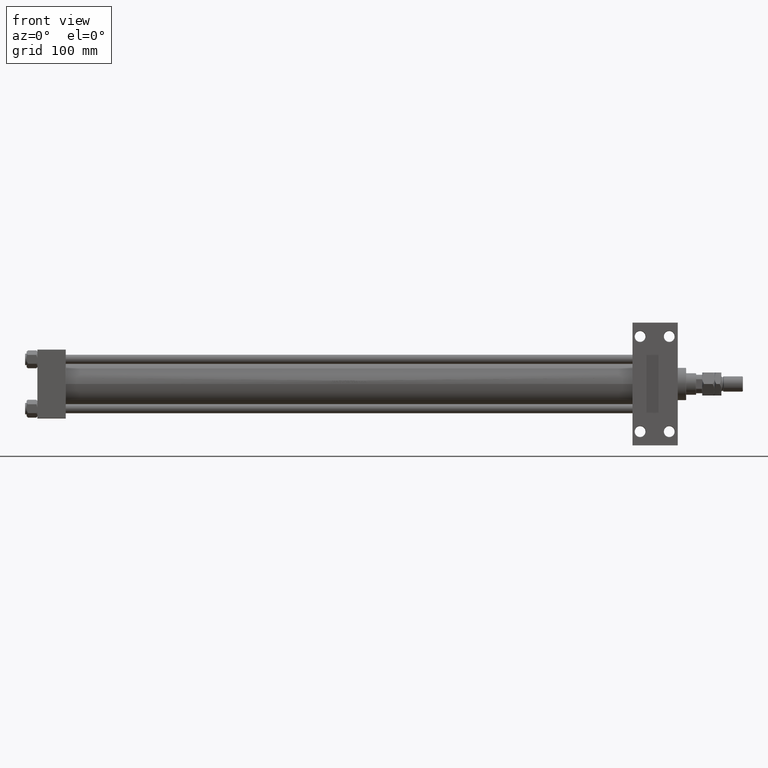
[diagram: clean part render]
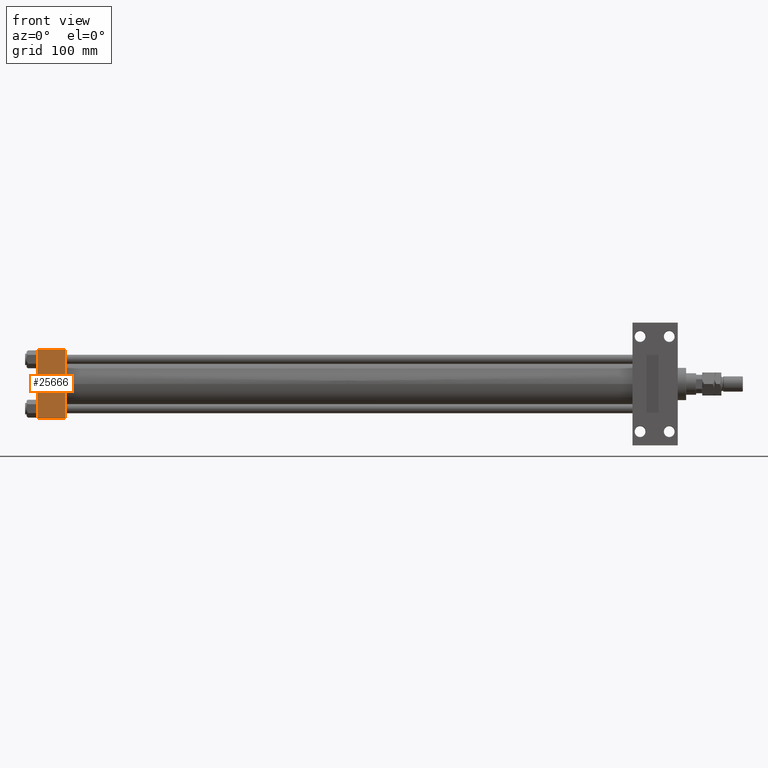
[diagram: same view with one face highlighted and labeled with its STEP entity id]
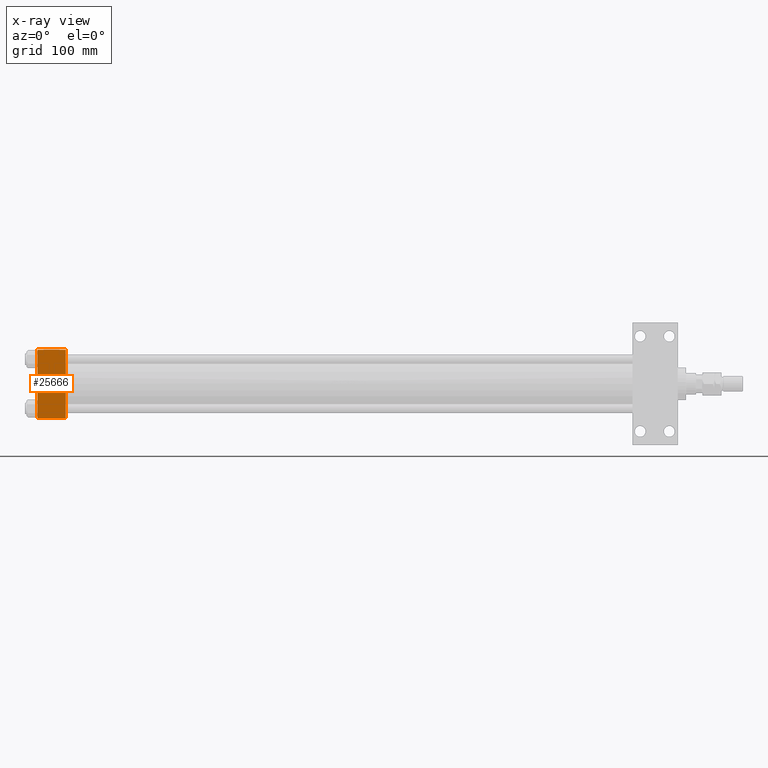
[diagram: x-ray of the same camera — body ghosted, the highlighted face saturated]
A machine part, front view. The second image highlights one B-rep face of the part: STEP entity #25666.
The next image is the same camera in x-ray: the body ghosted, the highlighted face saturated — about 0% of this face is hidden behind the body in this view.
In plain terms, the highlighted planar face has unit normal (0, -1, -0).
Its self-contained STEP definition (entity closure, byte-faithful):
#308 = CARTESIAN_POINT ( 'NONE',  ( 37.00000000000000000, 44.99999999999998579, -44.99999999999998579 ) ) ;
#585 = LINE ( 'NONE', #15985, #671 ) ;
#671 = VECTOR ( 'NONE', #7371, 1000.000000000000000 ) ;
#1142 = ORIENTED_EDGE ( 'NONE', *, *, #16371, .T. ) ;
#1772 = VERTEX_POINT ( 'NONE', #15149 ) ;
#3150 = VECTOR ( 'NONE', #47394, 1000.000000000000000 ) ;
#5031 = CARTESIAN_POINT ( 'NONE',  ( 0.000000000000000000, -44.49999999999998579, -45.00000000000000000 ) ) ;
#6199 = ORIENTED_EDGE ( 'NONE', *, *, #38084, .T. ) ;
#7371 = DIRECTION ( 'NONE',  ( 0.000000000000000000, -1.000000000000000000, -1.541976423090495633E-16 ) ) ;
#9363 = DIRECTION ( 'NONE',  ( 1.000000000000000000, 0.000000000000000000, 0.000000000000000000 ) ) ;
#11189 = PLANE ( 'NONE',  #38581 ) ;
#11500 = LINE ( 'NONE', #308, #11688 ) ;
#11688 = VECTOR ( 'NONE', #22221, 1000.000000000000000 ) ;
#11858 = EDGE_LOOP ( 'NONE', ( #44376, #35885, #1142, #6199 ) ) ;
#15149 = CARTESIAN_POINT ( 'NONE',  ( 37.00000000000000000, -44.49999999999995737, -45.00000000000000000 ) ) ;
#15172 = FACE_OUTER_BOUND ( 'NONE', #11858, .T. ) ;
#15985 = CARTESIAN_POINT ( 'NONE',  ( 0.000000000000000000, 44.99999999999998579, -44.99999999999998579 ) ) ;
#16371 = EDGE_CURVE ( 'NONE', #30580, #1772, #11500, .T. ) ;
#19162 = VERTEX_POINT ( 'NONE', #25837 ) ;
#22221 = DIRECTION ( 'NONE',  ( 0.000000000000000000, -1.000000000000000000, -1.541976423090495633E-16 ) ) ;
#25666 = ADVANCED_FACE ( 'NONE', ( #15172 ), #11189, .T. ) ;
#25837 = CARTESIAN_POINT ( 'NONE',  ( 0.000000000000000000, -44.49999999999995737, -45.00000000000000000 ) ) ;
#30580 = VERTEX_POINT ( 'NONE', #42423 ) ;
#32304 = CARTESIAN_POINT ( 'NONE',  ( 0.000000000000000000, 44.49999999999998579, -44.99999999999998579 ) ) ;
#33846 = CARTESIAN_POINT ( 'NONE',  ( 37.00000000000000000, 44.99999999999998579, -44.99999999999998579 ) ) ;
#35302 = EDGE_CURVE ( 'NONE', #39592, #19162, #585, .T. ) ;
#35885 = ORIENTED_EDGE ( 'NONE', *, *, #40888, .T. ) ;
#38084 = EDGE_CURVE ( 'NONE', #1772, #19162, #47647, .T. ) ;
#38182 = VECTOR ( 'NONE', #9363, 1000.000000000000000 ) ;
#38581 = AXIS2_PLACEMENT_3D ( 'NONE', #33846, #41831, #41580 ) ;
#39592 = VERTEX_POINT ( 'NONE', #32304 ) ;
#40888 = EDGE_CURVE ( 'NONE', #39592, #30580, #47244, .T. ) ;
#41580 = DIRECTION ( 'NONE',  ( 0.000000000000000000, 1.000000000000000000, 1.541976423090495880E-16 ) ) ;
#41831 = DIRECTION ( 'NONE',  ( 0.000000000000000000, 1.541976423090495880E-16, -1.000000000000000000 ) ) ;
#42423 = CARTESIAN_POINT ( 'NONE',  ( 37.00000000000000000, 44.49999999999998579, -44.99999999999998579 ) ) ;
#42994 = CARTESIAN_POINT ( 'NONE',  ( 37.00000000000000000, 44.49999999999998579, -44.99999999999998579 ) ) ;
#44376 = ORIENTED_EDGE ( 'NONE', *, *, #35302, .F. ) ;
#47244 = LINE ( 'NONE', #42994, #38182 ) ;
#47394 = DIRECTION ( 'NONE',  ( -1.000000000000000000, 0.000000000000000000, 0.000000000000000000 ) ) ;
#47647 = LINE ( 'NONE', #5031, #3150 ) ;